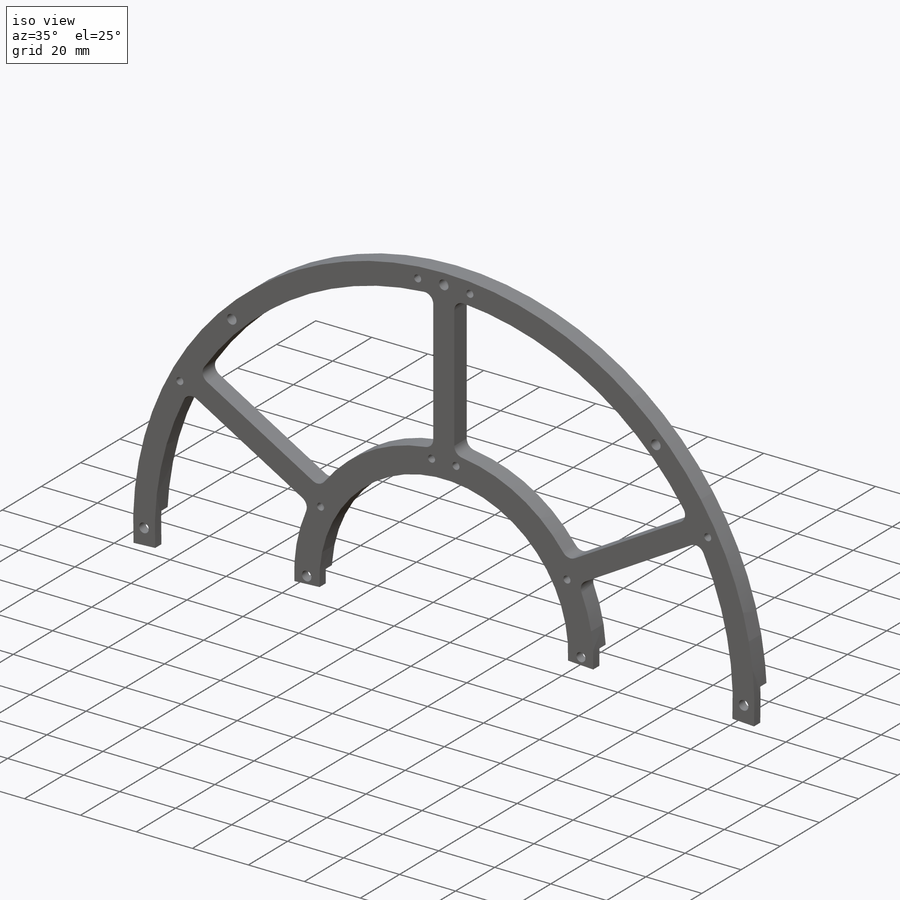
[diagram: iso view]
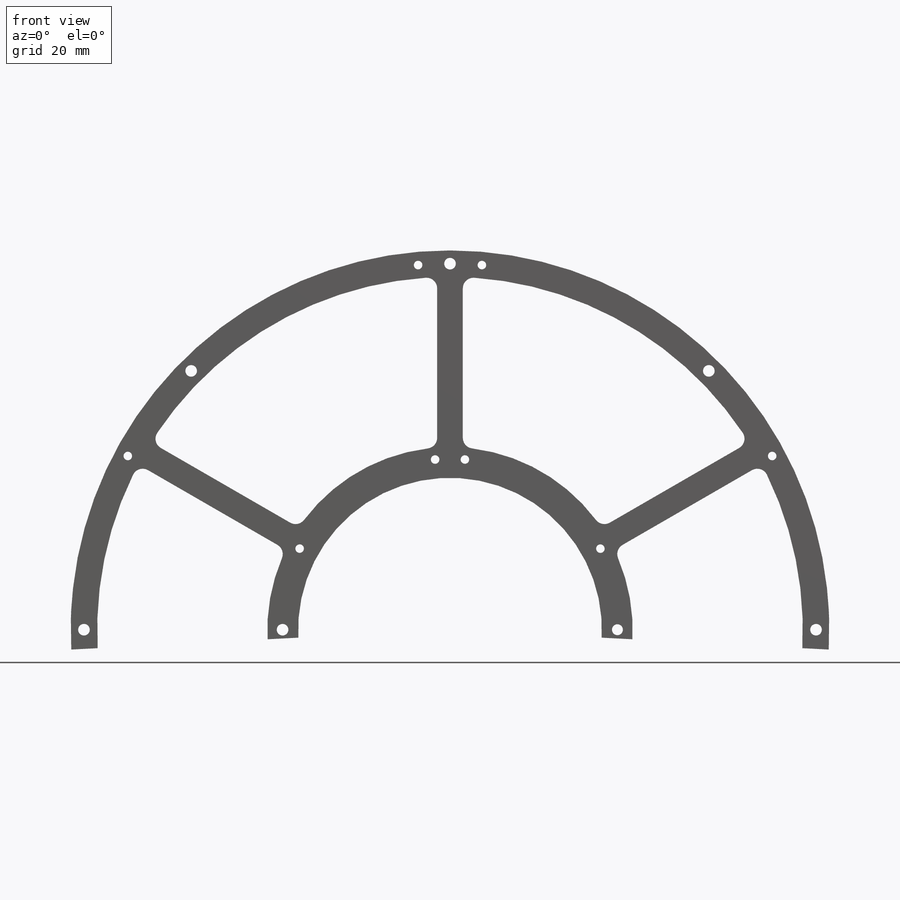
[diagram: front view]
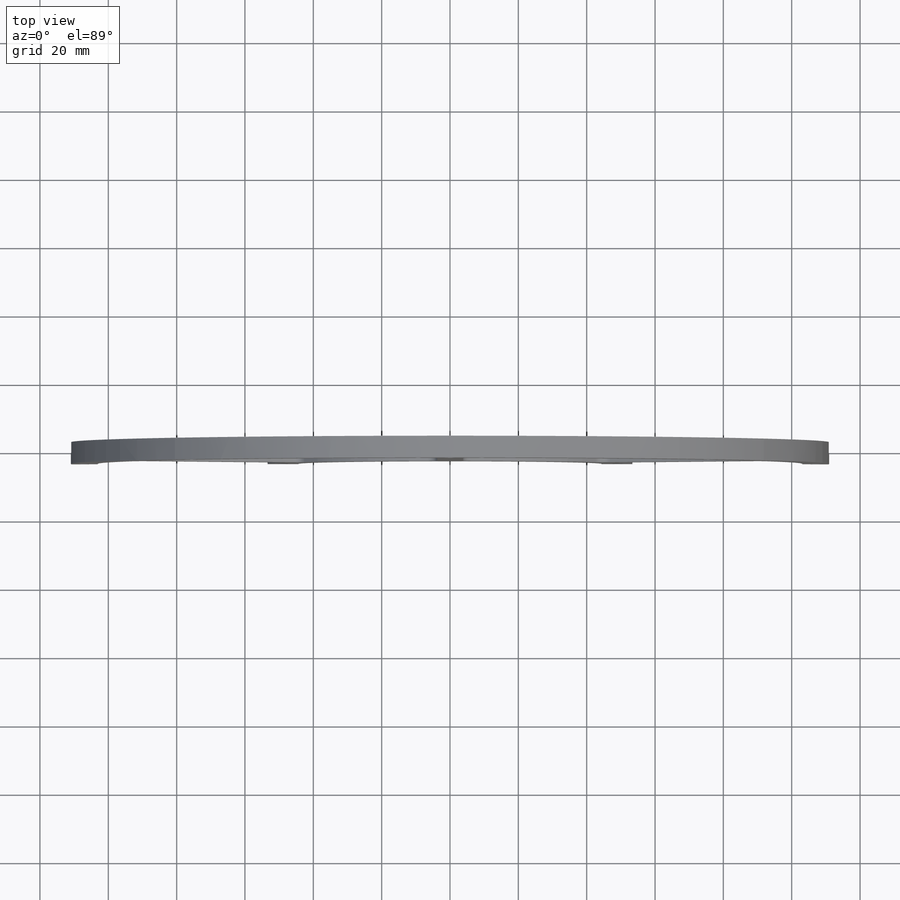
[diagram: top view]
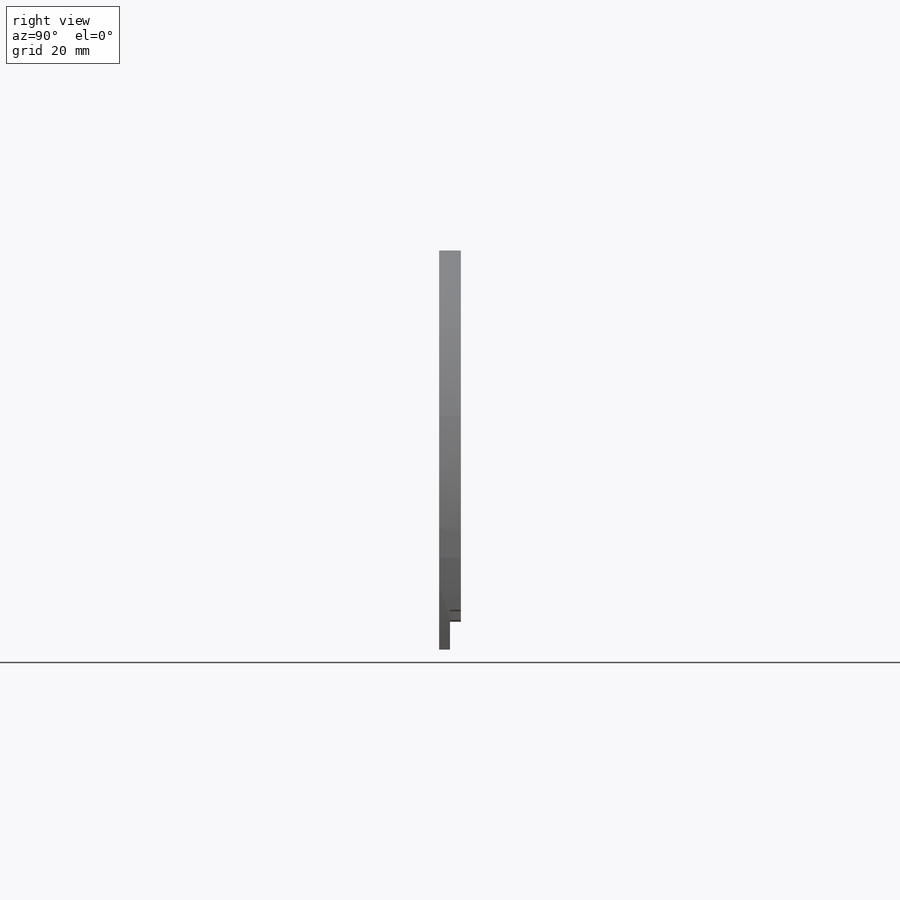
[diagram: right view]
SOLIDWORKS PART (.sldprt)
format: sldprt  version: not decoded by parser v0  size: 573,952 bytes
history: native  units: mm
features: sketch x13, thread x8, hole x4, extrude x2, pattern_circular x2, cut_extrude x2, material x1, fillet x1, mirror x1 (+11 scaffold rows collapsed)
feature tree (45):
  scaffold x11  (default folders/planes/origin — collapsed)
  material  "Dupont Vespel SP-1"
  sketch  "Sketch1"  dims[D1=222.0mm D2=206.5mm D3=88.9mm D4=9.0mm]
  extrude  "Boss-Extrude1"  Depth=6.35mm
  sketch  "Sketch2"  dims[D1=7.5mm]
  extrude  "Boss-Extrude2"  [1 undecoded]
  fillet  "Fillet1"  Radius=3.125mm
  pattern_circular  "CirPattern2"  Count=6 Angle=360deg
  hole  "M3 Clearance Hole1"  Diameter=3.4mm Depth=6.35mm
  sketch  "Sketch4"  dims[D1=107.125mm]
  sketch  "Sketch3"  dims[hole-wizard template sketch: 60 standard entries collapsed; hole parameters kept: c18.Thru Hole Depth=6.35mm]
  pattern_circular  "CirPattern3"  Count=8 Angle=360deg
  sketch  "Sketch5"  dims[c1.D1=111.0mm c2.D1=87.0deg c2.D2=200.0mm]
  cut_extrude  "Cut-Extrude1"  [1 undecoded]
  sketch  "Sketch6"  dims[c1.D1=111.0mm c2.D1=88.0deg c3.D1=200.0mm c3.D2=100.0mm c3.D3=100.0mm]
  cut_extrude  "Cut-Extrude6"  Depth=4mm
  mirror  "Mirror1"
  sketch  "Sketch7"
  hole  "M3 Clearance Hole2"  Diameter=3.4mm Depth=6.35mm
  sketch  "Sketch9"  dims[D1=49.0mm]
  sketch  "Sketch10"  dims[hole-wizard template sketch: 60 standard entries collapsed; hole parameters kept: c18.Thru Hole Depth=6.35mm]
  hole  "M3 Clearance Hole3"  Diameter=3.2mm Depth=6.35mm
  sketch  "Sketch12"  dims[D1=49.0mm]
  sketch  "Sketch11"  dims[hole-wizard template sketch: 60 standard entries collapsed; hole parameters kept: c18.Thru Hole Depth=6.35mm]
  hole  "M3x0.5 Tapped Hole1"  Diameter=2.5mm Depth=6.35mm
  sketch  "Sketch14"
  sketch  "Sketch13"  dims[hole-wizard template sketch: 60 standard entries collapsed; hole parameters kept: c18.Thru Tap Drill Depth=6.35mm]
  thread  "Hole Thread5"  Diameter=3mm  [1 undecoded]
  thread  "Hole Thread6"  Diameter=3mm  [1 undecoded]
  thread  "Hole Thread7"  Diameter=3mm  [1 undecoded]
  thread  "Hole Thread8"  Diameter=3mm  [1 undecoded]
  thread  "Hole Thread9"  Diameter=3mm  [1 undecoded]
  thread  "Hole Thread10"  Diameter=3mm  [1 undecoded]
  thread  "Hole Thread11"  Diameter=3mm  [1 undecoded]
  thread  "Hole Thread12"  Diameter=3mm  [1 undecoded]
decode coverage: 28 of 33 modeling features carry decoded parameters
note: ~ marks probable driven/reference dimensions
note: 10 parameter values undecoded
summary: Diameter pulled from absorbed wizard sketch
note: suppression state not decoded; provenance and decode notes live in map.json
